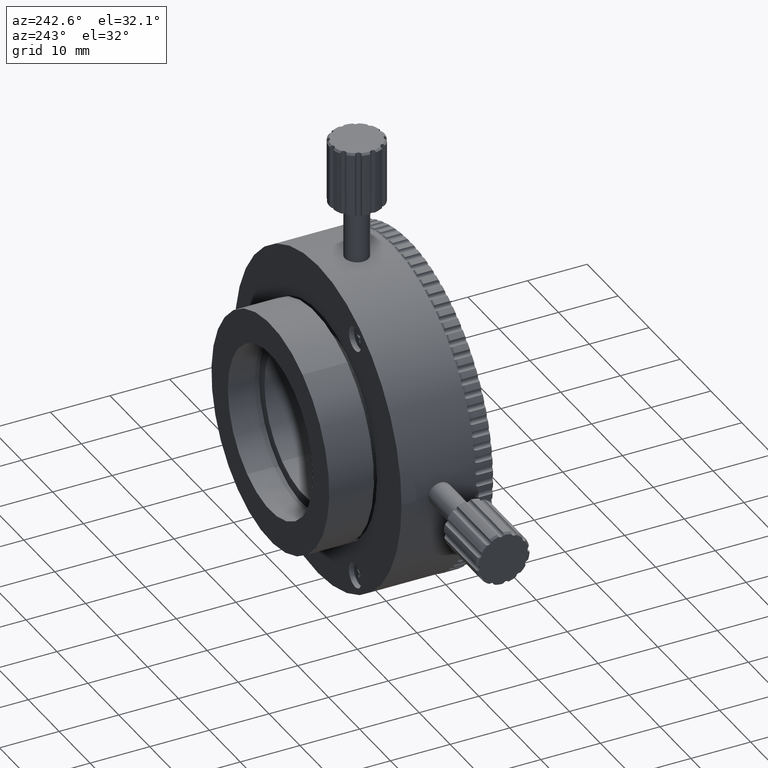
[diagram: clean part render]
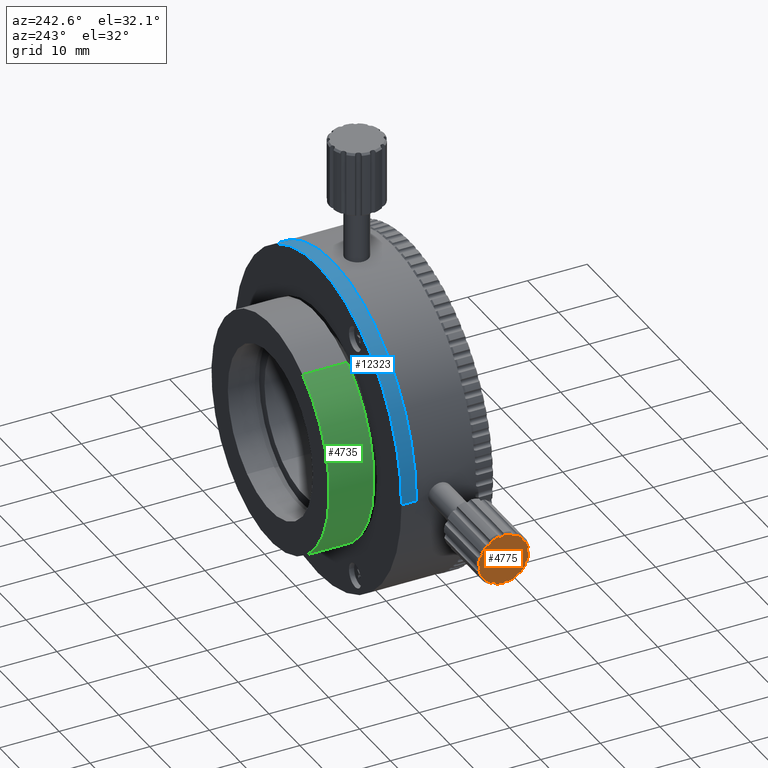
[diagram: same view with three faces highlighted in distinct colors, each labeled with its STEP entity id]
A machine part, auxiliary view with three faces highlighted in distinct colors.
Their STEP definitions:

[orange] entity #4775 — the highlighted planar face has unit normal (-1, -0, -0).
#486 = DIRECTION ( 'NONE',  ( -3.304235192336774723E-15, -0.4128744934196616478, 0.9107879295881439186 ) ) ;
#557 = CARTESIAN_POINT ( 'NONE',  ( -38.13430434938820213, 6.411850727061509936, 79.07421283088778807 ) ) ;
#577 = AXIS2_PLACEMENT_3D ( 'NONE', #10037, #3038, #20667 ) ;
#829 = DIRECTION ( 'NONE',  ( -1.000000000000000000, -1.017949417668873240E-16, -3.423397657558312205E-15 ) ) ;
#857 = ORIENTED_EDGE ( 'NONE', *, *, #12284, .F. ) ;
#930 = AXIS2_PLACEMENT_3D ( 'NONE', #3176, #17886, #8651 ) ;
#942 = DIRECTION ( 'NONE',  ( 0.000000000000000000, -0.09783416491800217551, -0.9952027311933971943 ) ) ;
#975 = ORIENTED_EDGE ( 'NONE', *, *, #17243, .F. ) ;
#1118 = DIRECTION ( 'NONE',  ( 1.000000000000000000, 1.017949417668873240E-16, 3.423397657558312205E-15 ) ) ;
#1193 = CARTESIAN_POINT ( 'NONE',  ( -38.13430434938820213, 6.411850727061509936, 79.07421283088778807 ) ) ;
#1362 = VERTEX_POINT ( 'NONE', #7789 ) ;
#1430 = ORIENTED_EDGE ( 'NONE', *, *, #8767, .F. ) ;
#1522 = AXIS2_PLACEMENT_3D ( 'NONE', #17996, #5603, #1986 ) ;
#1550 = EDGE_CURVE ( 'NONE', #19301, #9987, #8722, .T. ) ;
#1567 = DIRECTION ( 'NONE',  ( -1.000000000000000000, -1.017949417668873240E-16, -3.423397657558312205E-15 ) ) ;
#1601 = CARTESIAN_POINT ( 'NONE',  ( -38.13430434938820213, 14.16868835122377313, 78.31167098129449755 ) ) ;
#1757 = CIRCLE ( 'NONE', #5093, 0.5000000000000001110 ) ;
#1890 = DIRECTION ( 'NONE',  ( 0.000000000000000000, 0.8129537646701284759, -0.5823282377737364346 ) ) ;
#1915 = VERTEX_POINT ( 'NONE', #13587 ) ;
#1986 = DIRECTION ( 'NONE',  ( -3.304235192336774723E-15, -0.4128744934196616478, 0.9107879295881439186 ) ) ;
#2110 = FACE_OUTER_BOUND ( 'NONE', #17040, .T. ) ;
#2251 = DIRECTION ( 'NONE',  ( 1.000000000000000000, 1.017949417668873240E-16, 3.423397657558312205E-15 ) ) ;
#2599 = CIRCLE ( 'NONE', #11930, 4.200000000000001066 ) ;
#2672 = VERTEX_POINT ( 'NONE', #13850 ) ;
#2723 = DIRECTION ( 'NONE',  ( -1.000000000000000000, -1.017949417668873240E-16, -3.423397657558312205E-15 ) ) ;
#2828 = CARTESIAN_POINT ( 'NONE',  ( -38.13430434938818081, 12.14846479968769621, 72.80399917900622597 ) ) ;
#2833 = CIRCLE ( 'NONE', #4310, 4.200000000000001066 ) ;
#3007 = CARTESIAN_POINT ( 'NONE',  ( -38.13430434938820213, 6.894984121763905627, 79.20298442295428742 ) ) ;
#3031 = CARTESIAN_POINT ( 'NONE',  ( -38.13430434938818081, 9.276802758579529851, 72.32934346773139112 ) ) ;
#3038 = DIRECTION ( 'NONE',  ( 1.000000000000000000, 1.017949417668873240E-16, 3.423397657558312205E-15 ) ) ;
#3112 = ORIENTED_EDGE ( 'NONE', *, *, #9461, .F. ) ;
#3148 = CARTESIAN_POINT ( 'NONE',  ( -38.13430434938820923, 12.81939133012538967, 79.62889430721924100 ) ) ;
#3176 = CARTESIAN_POINT ( 'NONE',  ( -38.13430434938818081, 9.629888925946074707, 71.97532347053574142 ) ) ;
#3282 = CIRCLE ( 'NONE', #21931, 0.4999999999999934497 ) ;
#3357 = CARTESIAN_POINT ( 'NONE',  ( -38.13430434938820923, 10.09513119580482154, 80.65366142375793856 ) ) ;
#3739 = DIRECTION ( 'NONE',  ( 3.075960729669748765E-15, 0.4128744934196618144, -0.9107879295881438075 ) ) ;
#3866 = CARTESIAN_POINT ( 'NONE',  ( -38.13430434938819502, 10.07014266807712488, 76.45373576090602796 ) ) ;
#3897 = ORIENTED_EDGE ( 'NONE', *, *, #20724, .F. ) ;
#4007 = DIRECTION ( 'NONE',  ( -3.304235192336774723E-15, -0.4128744934196616478, 0.9107879295881439186 ) ) ;
#4310 = AXIS2_PLACEMENT_3D ( 'NONE', #22582, #1118, #6146 ) ;
#4329 = AXIS2_PLACEMENT_3D ( 'NONE', #22828, #8484, #6846 ) ;
#4350 = VERTEX_POINT ( 'NONE', #14055 ) ;
#4396 = ORIENTED_EDGE ( 'NONE', *, *, #11328, .F. ) ;
#4408 = CARTESIAN_POINT ( 'NONE',  ( -38.13430434938819502, 10.07014266807712488, 76.45373576090602796 ) ) ;
#4521 = DIRECTION ( 'NONE',  ( 0.000000000000000000, -0.9107879295881385895, -0.4128744934196736383 ) ) ;
#4571 = DIRECTION ( 'NONE',  ( 0.000000000000000000, -0.5823282377737241111, -0.8129537646701375797 ) ) ;
#4723 = CIRCLE ( 'NONE', #9951, 4.200000000000001066 ) ;
#4775 = ADVANCED_FACE ( 'NONE', ( #2110 ), #14606, .T. ) ;
#4776 = EDGE_CURVE ( 'NONE', #16251, #2672, #17553, .T. ) ;
#4825 = AXIS2_PLACEMENT_3D ( 'NONE', #557, #14815, #11196 ) ;
#4916 = DIRECTION ( 'NONE',  ( 0.000000000000000000, 0.9107879295881392556, 0.4128744934196723615 ) ) ;
#5093 = AXIS2_PLACEMENT_3D ( 'NONE', #14041, #21280, #15920 ) ;
#5121 = ORIENTED_EDGE ( 'NONE', *, *, #20593, .F. ) ;
#5147 = CARTESIAN_POINT ( 'NONE',  ( -38.13430434938819502, 10.07014266807712488, 76.45373576090602796 ) ) ;
#5315 = CIRCLE ( 'NONE', #6449, 0.5000000000000023315 ) ;
#5558 = DIRECTION ( 'NONE',  ( -3.304235192336774723E-15, -0.4128744934196616478, 0.9107879295881439186 ) ) ;
#5603 = DIRECTION ( 'NONE',  ( 1.000000000000000000, 1.017949417668873240E-16, 3.423397657558312205E-15 ) ) ;
#5657 = EDGE_CURVE ( 'NONE', #11547, #18411, #9246, .T. ) ;
#5858 = DIRECTION ( 'NONE',  ( 0.000000000000000000, -0.8129537646701298081, 0.5823282377737348803 ) ) ;
#5971 = CARTESIAN_POINT ( 'NONE',  ( -38.13430434938818081, 7.948539136835786501, 72.82898770673394040 ) ) ;
#6146 = DIRECTION ( 'NONE',  ( -3.304235192336774723E-15, -0.4128744934196616478, 0.9107879295881439186 ) ) ;
#6393 = ORIENTED_EDGE ( 'NONE', *, *, #14439, .F. ) ;
#6446 = ORIENTED_EDGE ( 'NONE', *, *, #11883, .F. ) ;
#6449 = AXIS2_PLACEMENT_3D ( 'NONE', #9034, #17944, #21319 ) ;
#6846 = DIRECTION ( 'NONE',  ( 0.000000000000000000, 0.09783416491800904502, 0.9952027311933964171 ) ) ;
#6919 = VERTEX_POINT ( 'NONE', #20573 ) ;
#7024 = CARTESIAN_POINT ( 'NONE',  ( -38.13430434938818081, 7.449665598095326580, 72.79544381989043700 ) ) ;
#7210 = VERTEX_POINT ( 'NONE', #9444 ) ;
#7301 = CARTESIAN_POINT ( 'NONE',  ( -38.13430434938819502, 10.07014266807712488, 76.45373576090602796 ) ) ;
#7316 = CIRCLE ( 'NONE', #22955, 4.200000000000001066 ) ;
#7350 = CARTESIAN_POINT ( 'NONE',  ( -38.13430434938819502, 10.07014266807712488, 76.45373576090602796 ) ) ;
#7456 = ORIENTED_EDGE ( 'NONE', *, *, #12068, .F. ) ;
#7627 = CIRCLE ( 'NONE', #10609, 0.5000000000000002220 ) ;
#7641 = ORIENTED_EDGE ( 'NONE', *, *, #19360, .F. ) ;
#7714 = AXIS2_PLACEMENT_3D ( 'NONE', #9809, #15201, #13446 ) ;
#7789 = CARTESIAN_POINT ( 'NONE',  ( -38.13430434938819502, 14.19453496125176528, 75.66039585140845247 ) ) ;
#7954 = CIRCLE ( 'NONE', #12816, 0.5000000000000039968 ) ;
#8024 = DIRECTION ( 'NONE',  ( -3.304235192336774723E-15, -0.4128744934196616478, 0.9107879295881439186 ) ) ;
#8134 = DIRECTION ( 'NONE',  ( 1.000000000000000000, 1.017949417668873240E-16, 3.423397657558312205E-15 ) ) ;
#8335 = DIRECTION ( 'NONE',  ( 0.000000000000000000, -0.9952027311933960840, 0.09783416491801458226 ) ) ;
#8484 = DIRECTION ( 'NONE',  ( -1.000000000000000000, -1.017949417668873240E-16, -3.423397657558312205E-15 ) ) ;
#8532 = VERTEX_POINT ( 'NONE', #3031 ) ;
#8560 = VERTEX_POINT ( 'NONE', #20552 ) ;
#8651 = DIRECTION ( 'NONE',  ( 0.000000000000000000, 0.9952027311933960840, -0.09783416491801458226 ) ) ;
#8653 = DIRECTION ( 'NONE',  ( 1.000000000000000000, 1.017949417668873240E-16, 3.423397657558312205E-15 ) ) ;
#8722 = CIRCLE ( 'NONE', #14320, 4.200000000000001066 ) ;
#8767 = EDGE_CURVE ( 'NONE', #14289, #10617, #18654, .T. ) ;
#8786 = CARTESIAN_POINT ( 'NONE',  ( -38.13430434938819502, 10.07014266807712488, 76.45373576090602796 ) ) ;
#8901 = CARTESIAN_POINT ( 'NONE',  ( -38.13430434938820213, 6.618287973771344923, 78.61881886609371861 ) ) ;
#8968 = ORIENTED_EDGE ( 'NONE', *, *, #14147, .F. ) ;
#9017 = EDGE_CURVE ( 'NONE', #12064, #4350, #5315, .T. ) ;
#9034 = CARTESIAN_POINT ( 'NONE',  ( -38.13430434938818792, 13.72843460909272295, 73.83325869092425364 ) ) ;
#9246 = CIRCLE ( 'NONE', #20839, 0.5000000000000028866 ) ;
#9436 = VERTEX_POINT ( 'NONE', #10784 ) ;
#9444 = CARTESIAN_POINT ( 'NONE',  ( -38.13430434938820213, 13.71987924997693753, 78.53205789251659041 ) ) ;
#9461 = EDGE_CURVE ( 'NONE', #9987, #16251, #7954, .T. ) ;
#9518 = VERTEX_POINT ( 'NONE', #12542 ) ;
#9524 = CIRCLE ( 'NONE', #577, 4.200000000000001066 ) ;
#9809 = CARTESIAN_POINT ( 'NONE',  ( -38.13430434938819502, 10.07014266807712488, 76.45373576090602796 ) ) ;
#9877 = VERTEX_POINT ( 'NONE', #19183 ) ;
#9886 = DIRECTION ( 'NONE',  ( -1.000000000000000000, -1.017949417668873240E-16, -3.423397657558312205E-15 ) ) ;
#9901 = DIRECTION ( 'NONE',  ( -1.000000000000000000, -1.017949417668873240E-16, -3.423397657558312205E-15 ) ) ;
#9951 = AXIS2_PLACEMENT_3D ( 'NONE', #8786, #17461, #4007 ) ;
#9987 = VERTEX_POINT ( 'NONE', #18350 ) ;
#10037 = CARTESIAN_POINT ( 'NONE',  ( -38.13430434938819502, 10.07014266807712488, 76.45373576090602796 ) ) ;
#10123 = VERTEX_POINT ( 'NONE', #22068 ) ;
#10319 = DIRECTION ( 'NONE',  ( 0.000000000000000000, 0.4128744934196583172, -0.9107879295881453618 ) ) ;
#10609 = AXIS2_PLACEMENT_3D ( 'NONE', #1193, #2723, #4571 ) ;
#10616 = CARTESIAN_POINT ( 'NONE',  ( -38.13430434938820923, 7.991820536466527791, 80.10347234280581574 ) ) ;
#10617 = VERTEX_POINT ( 'NONE', #8901 ) ;
#10784 = CARTESIAN_POINT ( 'NONE',  ( -38.13430434938820923, 10.71683365691798073, 80.47675408648223083 ) ) ;
#10803 = DIRECTION ( 'NONE',  ( -3.304235192336774723E-15, -0.4128744934196616478, 0.9107879295881439186 ) ) ;
#10831 = DIRECTION ( 'NONE',  ( 0.000000000000000000, -0.4128744934196597605, 0.9107879295881448067 ) ) ;
#10869 = DIRECTION ( 'NONE',  ( -1.000000000000000000, -1.017949417668876198E-16, -3.423397657558311810E-15 ) ) ;
#10910 = CARTESIAN_POINT ( 'NONE',  ( -38.13430434938819502, 10.07014266807712488, 76.45373576090602796 ) ) ;
#10998 = CIRCLE ( 'NONE', #930, 0.5000000000000009992 ) ;
#11031 = CIRCLE ( 'NONE', #4329, 0.4999999999999938383 ) ;
#11057 = EDGE_CURVE ( 'NONE', #8532, #18485, #10998, .T. ) ;
#11174 = VERTEX_POINT ( 'NONE', #5971 ) ;
#11196 = DIRECTION ( 'NONE',  ( 0.000000000000000000, -0.5823282377737241111, -0.8129537646701375797 ) ) ;
#11274 = VERTEX_POINT ( 'NONE', #16606 ) ;
#11328 = EDGE_CURVE ( 'NONE', #18411, #11274, #9524, .T. ) ;
#11496 = AXIS2_PLACEMENT_3D ( 'NONE', #12965, #9901, #22284 ) ;
#11547 = VERTEX_POINT ( 'NONE', #3148 ) ;
#11550 = DIRECTION ( 'NONE',  ( 1.000000000000000000, 1.017949417668873240E-16, 3.423397657558312205E-15 ) ) ;
#11831 = CARTESIAN_POINT ( 'NONE',  ( -38.13430434938818081, 11.92807788846561756, 72.35519007775938860 ) ) ;
#11883 = EDGE_CURVE ( 'NONE', #1362, #6919, #11031, .T. ) ;
#11930 = AXIS2_PLACEMENT_3D ( 'NONE', #21501, #21626, #17664 ) ;
#12064 = VERTEX_POINT ( 'NONE', #20048 ) ;
#12068 = EDGE_CURVE ( 'NONE', #7210, #11547, #16294, .T. ) ;
#12262 = EDGE_CURVE ( 'NONE', #2672, #11174, #15909, .T. ) ;
#12284 = EDGE_CURVE ( 'NONE', #11174, #8532, #7316, .T. ) ;
#12485 = CARTESIAN_POINT ( 'NONE',  ( -38.13430434938818792, 6.420406086177314009, 74.37541362929546551 ) ) ;
#12525 = CIRCLE ( 'NONE', #13634, 4.200000000000001066 ) ;
#12542 = CARTESIAN_POINT ( 'NONE',  ( -38.13430434938818081, 11.44528629920348450, 72.48523730509523944 ) ) ;
#12547 = CIRCLE ( 'NONE', #22943, 0.5000000000000001110 ) ;
#12615 = EDGE_CURVE ( 'NONE', #18485, #9518, #16317, .T. ) ;
#12816 = AXIS2_PLACEMENT_3D ( 'NONE', #17680, #22906, #10319 ) ;
#12898 = ORIENTED_EDGE ( 'NONE', *, *, #4776, .F. ) ;
#12965 = CARTESIAN_POINT ( 'NONE',  ( -38.13430434938820923, 10.51039641020814486, 80.93214805127631450 ) ) ;
#13400 = VERTEX_POINT ( 'NONE', #2828 ) ;
#13446 = DIRECTION ( 'NONE',  ( -3.304235192336774723E-15, -0.4128744934196616478, 0.9107879295881439186 ) ) ;
#13520 = DIRECTION ( 'NONE',  ( -3.304235192336774723E-15, -0.4128744934196616478, 0.9107879295881439186 ) ) ;
#13587 = CARTESIAN_POINT ( 'NONE',  ( -38.13430434938820923, 8.694999036950738613, 80.42223421671680228 ) ) ;
#13634 = AXIS2_PLACEMENT_3D ( 'NONE', #4408, #11550, #8024 ) ;
#13850 = CARTESIAN_POINT ( 'NONE',  ( -38.13430434938818081, 7.320894006028838774, 73.27857721459284335 ) ) ;
#13979 = CIRCLE ( 'NONE', #18522, 0.5000000000000016653 ) ;
#14041 = CARTESIAN_POINT ( 'NONE',  ( -38.13430434938820923, 8.212207447688603779, 80.55228144405265311 ) ) ;
#14055 = CARTESIAN_POINT ( 'NONE',  ( -38.13430434938818792, 13.69489072224920889, 74.33213222966469402 ) ) ;
#14074 = DIRECTION ( 'NONE',  ( 1.000000000000000000, 1.017949417668873240E-16, 3.423397657558312205E-15 ) ) ;
#14147 = EDGE_CURVE ( 'NONE', #8560, #21093, #12547, .T. ) ;
#14208 = EDGE_CURVE ( 'NONE', #9877, #21031, #22216, .T. ) ;
#14239 = CARTESIAN_POINT ( 'NONE',  ( -38.13430434938819502, 5.945750374902480928, 77.24707567040357503 ) ) ;
#14240 = ORIENTED_EDGE ( 'NONE', *, *, #11057, .F. ) ;
#14289 = VERTEX_POINT ( 'NONE', #3007 ) ;
#14320 = AXIS2_PLACEMENT_3D ( 'NONE', #10910, #14074, #10803 ) ;
#14439 = EDGE_CURVE ( 'NONE', #9518, #13400, #13979, .T. ) ;
#14508 = EDGE_CURVE ( 'NONE', #10617, #9877, #7627, .T. ) ;
#14606 = PLANE ( 'NONE',  #20916 ) ;
#14626 = CARTESIAN_POINT ( 'NONE',  ( -38.13430434938820923, 12.69061973805889920, 80.11202770192163314 ) ) ;
#14815 = DIRECTION ( 'NONE',  ( -1.000000000000000000, -1.017949417668873240E-16, -3.423397657558312205E-15 ) ) ;
#15182 = CIRCLE ( 'NONE', #16673, 0.5000000000000009992 ) ;
#15201 = DIRECTION ( 'NONE',  ( 1.000000000000000000, 1.017949417668873240E-16, 3.423397657558312205E-15 ) ) ;
#15241 = ORIENTED_EDGE ( 'NONE', *, *, #21466, .F. ) ;
#15361 = EDGE_CURVE ( 'NONE', #13400, #12064, #12525, .T. ) ;
#15891 = AXIS2_PLACEMENT_3D ( 'NONE', #16917, #8134, #13520 ) ;
#15909 = CIRCLE ( 'NONE', #17410, 0.5000000000000015543 ) ;
#15920 = DIRECTION ( 'NONE',  ( 0.000000000000000000, -0.9107879295881385895, -0.4128744934196736383 ) ) ;
#15970 = EDGE_CURVE ( 'NONE', #9436, #20287, #15182, .T. ) ;
#15976 = EDGE_CURVE ( 'NONE', #20287, #1915, #4723, .T. ) ;
#15992 = AXIS2_PLACEMENT_3D ( 'NONE', #1601, #22948, #10831 ) ;
#16251 = VERTEX_POINT ( 'NONE', #12485 ) ;
#16294 = CIRCLE ( 'NONE', #21494, 4.200000000000001066 ) ;
#16317 = CIRCLE ( 'NONE', #7714, 4.200000000000001066 ) ;
#16386 = CARTESIAN_POINT ( 'NONE',  ( -38.13430434938820923, 12.19174619931843750, 80.07848381507811553 ) ) ;
#16479 = ORIENTED_EDGE ( 'NONE', *, *, #12262, .F. ) ;
#16499 = ORIENTED_EDGE ( 'NONE', *, *, #5657, .F. ) ;
#16606 = CARTESIAN_POINT ( 'NONE',  ( -38.13430434938820923, 10.86348257757469149, 80.57812805408066481 ) ) ;
#16673 = AXIS2_PLACEMENT_3D ( 'NONE', #17575, #1567, #8335 ) ;
#16693 = CARTESIAN_POINT ( 'NONE',  ( -38.13430434938820923, 8.212207447688603779, 80.55228144405265311 ) ) ;
#16871 = ORIENTED_EDGE ( 'NONE', *, *, #15361, .F. ) ;
#16917 = CARTESIAN_POINT ( 'NONE',  ( -38.13430434938819502, 10.07014266807712488, 76.45373576090602796 ) ) ;
#17040 = EDGE_LOOP ( 'NONE', ( #14240, #857, #16479, #12898, #3112, #17347, #975, #22971, #21416, #1430, #22814, #8968, #5121, #19988, #19233, #17545, #4396, #16499, #7456, #15241, #7641, #6446, #3897, #21091, #16871, #6393, #21464 ) ) ;
#17083 = AXIS2_PLACEMENT_3D ( 'NONE', #3866, #2251, #486 ) ;
#17188 = CARTESIAN_POINT ( 'NONE',  ( -38.13430434938819502, 5.591730377706838340, 76.89398950303703373 ) ) ;
#17243 = EDGE_CURVE ( 'NONE', #21031, #19301, #3282, .T. ) ;
#17347 = ORIENTED_EDGE ( 'NONE', *, *, #1550, .F. ) ;
#17410 = AXIS2_PLACEMENT_3D ( 'NONE', #7024, #19302, #1890 ) ;
#17461 = DIRECTION ( 'NONE',  ( 1.000000000000000000, 1.017949417668873240E-16, 3.423397657558312205E-15 ) ) ;
#17545 = ORIENTED_EDGE ( 'NONE', *, *, #21216, .F. ) ;
#17553 = CIRCLE ( 'NONE', #1522, 4.200000000000001066 ) ;
#17575 = CARTESIAN_POINT ( 'NONE',  ( -38.13430434938820923, 10.51039641020814486, 80.93214805127631450 ) ) ;
#17664 = DIRECTION ( 'NONE',  ( -3.304235192336774723E-15, -0.4128744934196616478, 0.9107879295881439186 ) ) ;
#17680 = CARTESIAN_POINT ( 'NONE',  ( -38.13430434938818792, 5.971596984930478413, 74.59580054051754416 ) ) ;
#17886 = DIRECTION ( 'NONE',  ( -1.000000000000000000, -1.017949417668873240E-16, -3.423397657558312205E-15 ) ) ;
#17944 = DIRECTION ( 'NONE',  ( -1.000000000000000000, -1.017949417668873240E-16, -3.423397657558312205E-15 ) ) ;
#17996 = CARTESIAN_POINT ( 'NONE',  ( -38.13430434938819502, 10.07014266807712488, 76.45373576090602796 ) ) ;
#18339 = EDGE_CURVE ( 'NONE', #21093, #14289, #2599, .T. ) ;
#18350 = CARTESIAN_POINT ( 'NONE',  ( -38.13430434938818792, 6.101644212266333689, 75.07859212977969321 ) ) ;
#18411 = VERTEX_POINT ( 'NONE', #16386 ) ;
#18485 = VERTEX_POINT ( 'NONE', #21846 ) ;
#18522 = AXIS2_PLACEMENT_3D ( 'NONE', #11831, #20695, #4916 ) ;
#18654 = CIRCLE ( 'NONE', #4825, 0.5000000000000002220 ) ;
#18984 = CIRCLE ( 'NONE', #15992, 0.5000000000000043299 ) ;
#18996 = CARTESIAN_POINT ( 'NONE',  ( -38.13430434938819502, 5.870217005225224050, 76.47872428863371397 ) ) ;
#19183 = CARTESIAN_POINT ( 'NONE',  ( -38.13430434938820213, 6.445394613905024883, 78.57533929214733348 ) ) ;
#19233 = ORIENTED_EDGE ( 'NONE', *, *, #15970, .F. ) ;
#19301 = VERTEX_POINT ( 'NONE', #18996 ) ;
#19302 = DIRECTION ( 'NONE',  ( -1.000000000000000000, -1.017949417668873240E-16, -3.423397657558312205E-15 ) ) ;
#19360 = EDGE_CURVE ( 'NONE', #6919, #10123, #2833, .T. ) ;
#19988 = ORIENTED_EDGE ( 'NONE', *, *, #15976, .F. ) ;
#20048 = CARTESIAN_POINT ( 'NONE',  ( -38.13430434938818792, 13.24530121439032548, 73.70448709885775429 ) ) ;
#20287 = VERTEX_POINT ( 'NONE', #3357 ) ;
#20552 = CARTESIAN_POINT ( 'NONE',  ( -38.13430434938820923, 8.418644694398446759, 80.09688747925859786 ) ) ;
#20573 = CARTESIAN_POINT ( 'NONE',  ( -38.13430434938819502, 14.27006833092902838, 76.42874723317831354 ) ) ;
#20593 = EDGE_CURVE ( 'NONE', #1915, #8560, #1757, .T. ) ;
#20667 = DIRECTION ( 'NONE',  ( -3.304235192336774723E-15, -0.4128744934196616478, 0.9107879295881439186 ) ) ;
#20695 = DIRECTION ( 'NONE',  ( -1.000000000000000000, -1.017949417668873240E-16, -3.423397657558312205E-15 ) ) ;
#20724 = EDGE_CURVE ( 'NONE', #4350, #1362, #21165, .T. ) ;
#20829 = CIRCLE ( 'NONE', #11496, 0.5000000000000009992 ) ;
#20839 = AXIS2_PLACEMENT_3D ( 'NONE', #14626, #22503, #5858 ) ;
#20916 = AXIS2_PLACEMENT_3D ( 'NONE', #7350, #10869, #3739 ) ;
#21031 = VERTEX_POINT ( 'NONE', #14239 ) ;
#21091 = ORIENTED_EDGE ( 'NONE', *, *, #9017, .F. ) ;
#21093 = VERTEX_POINT ( 'NONE', #10616 ) ;
#21165 = CIRCLE ( 'NONE', #17083, 4.200000000000001066 ) ;
#21216 = EDGE_CURVE ( 'NONE', #11274, #9436, #20829, .T. ) ;
#21280 = DIRECTION ( 'NONE',  ( -1.000000000000000000, -1.017949417668873240E-16, -3.423397657558312205E-15 ) ) ;
#21319 = DIRECTION ( 'NONE',  ( 0.000000000000000000, 0.5823282377737286630, 0.8129537646701341380 ) ) ;
#21416 = ORIENTED_EDGE ( 'NONE', *, *, #14508, .F. ) ;
#21464 = ORIENTED_EDGE ( 'NONE', *, *, #12615, .F. ) ;
#21466 = EDGE_CURVE ( 'NONE', #10123, #7210, #18984, .T. ) ;
#21494 = AXIS2_PLACEMENT_3D ( 'NONE', #7301, #21560, #5558 ) ;
#21497 = DIRECTION ( 'NONE',  ( -3.304235192336774723E-15, -0.4128744934196616478, 0.9107879295881439186 ) ) ;
#21501 = CARTESIAN_POINT ( 'NONE',  ( -38.13430434938819502, 10.07014266807712488, 76.45373576090602796 ) ) ;
#21560 = DIRECTION ( 'NONE',  ( 1.000000000000000000, 1.017949417668873240E-16, 3.423397657558312205E-15 ) ) ;
#21626 = DIRECTION ( 'NONE',  ( 1.000000000000000000, 1.017949417668873240E-16, 3.423397657558312205E-15 ) ) ;
#21846 = CARTESIAN_POINT ( 'NONE',  ( -38.13430434938818081, 10.04515414034939980, 72.25381009805411736 ) ) ;
#21931 = AXIS2_PLACEMENT_3D ( 'NONE', #17188, #829, #942 ) ;
#22068 = CARTESIAN_POINT ( 'NONE',  ( -38.13430434938820213, 14.03864112388791874, 77.82887939203236272 ) ) ;
#22216 = CIRCLE ( 'NONE', #15891, 4.200000000000001066 ) ;
#22284 = DIRECTION ( 'NONE',  ( 0.000000000000000000, -0.9952027311933960840, 0.09783416491801458226 ) ) ;
#22503 = DIRECTION ( 'NONE',  ( -1.000000000000000000, -1.017949417668873240E-16, -3.423397657558312205E-15 ) ) ;
#22582 = CARTESIAN_POINT ( 'NONE',  ( -38.13430434938819502, 10.07014266807712488, 76.45373576090602796 ) ) ;
#22814 = ORIENTED_EDGE ( 'NONE', *, *, #18339, .F. ) ;
#22828 = CARTESIAN_POINT ( 'NONE',  ( -38.13430434938819502, 14.54855495844740965, 76.01348201877499378 ) ) ;
#22906 = DIRECTION ( 'NONE',  ( -1.000000000000000000, -1.017949417668873240E-16, -3.423397657558312205E-15 ) ) ;
#22943 = AXIS2_PLACEMENT_3D ( 'NONE', #16693, #9886, #4521 ) ;
#22948 = DIRECTION ( 'NONE',  ( -1.000000000000000000, -1.017949417668873240E-16, -3.423397657558312205E-15 ) ) ;
#22955 = AXIS2_PLACEMENT_3D ( 'NONE', #5147, #8653, #21497 ) ;
#22971 = ORIENTED_EDGE ( 'NONE', *, *, #14208, .F. ) ;

[blue] entity #12323 — the highlighted cylindrical surface (partial cylindrical patch) has radius 27 mm, axis along (-0, -1, 0).
#655 = CARTESIAN_POINT ( 'NONE',  ( 36.35296324910479626, 14.07014266807712843, 76.45373576090617007 ) ) ;
#779 = VECTOR ( 'NONE', #21655, 1000.000000000000000 ) ;
#907 = DIRECTION ( 'NONE',  ( 0.000000000000000000, 1.000000000000000000, 0.000000000000000000 ) ) ;
#967 = DIRECTION ( 'NONE',  ( 1.000000000000000000, 0.000000000000000000, 0.000000000000000000 ) ) ;
#970 = ORIENTED_EDGE ( 'NONE', *, *, #11059, .T. ) ;
#1432 = CARTESIAN_POINT ( 'NONE',  ( -17.64703675089520729, 16.57014266807712843, 76.45373576090617007 ) ) ;
#1436 = DIRECTION ( 'NONE',  ( 0.000000000000000000, 1.000000000000000000, 0.000000000000000000 ) ) ;
#2162 = CARTESIAN_POINT ( 'NONE',  ( 36.35296324910479626, 16.57014266807712843, 76.45373576090617007 ) ) ;
#2360 = ORIENTED_EDGE ( 'NONE', *, *, #5116, .F. ) ;
#4863 = VERTEX_POINT ( 'NONE', #19511 ) ;
#5116 = EDGE_CURVE ( 'NONE', #21597, #10360, #8795, .T. ) ;
#5473 = ORIENTED_EDGE ( 'NONE', *, *, #16941, .T. ) ;
#5565 = CARTESIAN_POINT ( 'NONE',  ( 36.35296324910479626, 16.57014266807712843, 76.45373576090617007 ) ) ;
#6181 = AXIS2_PLACEMENT_3D ( 'NONE', #19017, #907, #13523 ) ;
#6902 = FACE_OUTER_BOUND ( 'NONE', #10499, .T. ) ;
#8795 = LINE ( 'NONE', #2162, #779 ) ;
#10360 = VERTEX_POINT ( 'NONE', #655 ) ;
#10499 = EDGE_LOOP ( 'NONE', ( #2360, #15045, #970, #5473 ) ) ;
#11059 = EDGE_CURVE ( 'NONE', #4863, #19619, #15908, .T. ) ;
#11807 = AXIS2_PLACEMENT_3D ( 'NONE', #21160, #17551, #22885 ) ;
#12323 = ADVANCED_FACE ( 'NONE', ( #6902 ), #21042, .T. ) ;
#13523 = DIRECTION ( 'NONE',  ( 1.000000000000000000, 0.000000000000000000, 0.000000000000000000 ) ) ;
#15045 = ORIENTED_EDGE ( 'NONE', *, *, #15300, .F. ) ;
#15300 = EDGE_CURVE ( 'NONE', #4863, #21597, #20359, .T. ) ;
#15853 = VECTOR ( 'NONE', #22998, 1000.000000000000000 ) ;
#15908 = LINE ( 'NONE', #1432, #15853 ) ;
#16941 = EDGE_CURVE ( 'NONE', #19619, #10360, #23010, .T. ) ;
#17437 = CARTESIAN_POINT ( 'NONE',  ( 9.352963249104790933, 14.07014266807712843, 76.45373576090617007 ) ) ;
#17551 = DIRECTION ( 'NONE',  ( -0.000000000000000000, -1.000000000000000000, 0.000000000000000000 ) ) ;
#18158 = CARTESIAN_POINT ( 'NONE',  ( -17.64703675089520729, 14.07014266807712843, 76.45373576090617007 ) ) ;
#19017 = CARTESIAN_POINT ( 'NONE',  ( 9.352963249104790933, 16.57014266807712843, 76.45373576090617007 ) ) ;
#19511 = CARTESIAN_POINT ( 'NONE',  ( -17.64703675089520729, 16.57014266807712843, 76.45373576090617007 ) ) ;
#19619 = VERTEX_POINT ( 'NONE', #18158 ) ;
#20359 = CIRCLE ( 'NONE', #6181, 27.00000000000000355 ) ;
#20421 = AXIS2_PLACEMENT_3D ( 'NONE', #17437, #1436, #967 ) ;
#21042 = CYLINDRICAL_SURFACE ( 'NONE', #11807, 27.00000000000000000 ) ;
#21160 = CARTESIAN_POINT ( 'NONE',  ( 9.352963249104790933, 16.57014266807712843, 76.45373576090617007 ) ) ;
#21597 = VERTEX_POINT ( 'NONE', #5565 ) ;
#21655 = DIRECTION ( 'NONE',  ( -0.000000000000000000, -1.000000000000000000, 0.000000000000000000 ) ) ;
#22885 = DIRECTION ( 'NONE',  ( -1.000000000000000000, 0.000000000000000000, 0.000000000000000000 ) ) ;
#22998 = DIRECTION ( 'NONE',  ( -0.000000000000000000, -1.000000000000000000, 0.000000000000000000 ) ) ;
#23010 = CIRCLE ( 'NONE', #20421, 27.00000000000000355 ) ;

[green] entity #4735 — the highlighted cylindrical surface (partial cylindrical patch) has radius 19.05 mm, axis along (0, 1, 0).
#215 = CARTESIAN_POINT ( 'NONE',  ( -1.066322591301195333, 17.07014266807714264, 92.40180719841595192 ) ) ;
#1120 = EDGE_CURVE ( 'NONE', #3153, #16707, #21007, .T. ) ;
#1466 = CARTESIAN_POINT ( 'NONE',  ( -1.066322591301196887, 24.57014266807713909, 92.40180719841595192 ) ) ;
#1596 = CARTESIAN_POINT ( 'NONE',  ( 9.352963249104790933, 24.57014266807714264, 76.45373576090617007 ) ) ;
#2009 = VECTOR ( 'NONE', #17733, 1000.000000000000000 ) ;
#3153 = VERTEX_POINT ( 'NONE', #15473 ) ;
#3212 = LINE ( 'NONE', #1466, #5050 ) ;
#3663 = ORIENTED_EDGE ( 'NONE', *, *, #1120, .F. ) ;
#4735 = ADVANCED_FACE ( 'NONE', ( #10285 ), #6442, .T. ) ;
#4745 = ORIENTED_EDGE ( 'NONE', *, *, #19528, .T. ) ;
#5050 = VECTOR ( 'NONE', #8575, 1000.000000000000000 ) ;
#5872 = EDGE_LOOP ( 'NONE', ( #15551, #4745, #11319, #3663 ) ) ;
#6442 = CYLINDRICAL_SURFACE ( 'NONE', #9330, 19.05000000000000426 ) ;
#7970 = DIRECTION ( 'NONE',  ( 0.5469441386039886055, 0.000000000000000000, -0.8371691043312222691 ) ) ;
#8575 = DIRECTION ( 'NONE',  ( 0.000000000000000000, 1.000000000000000000, 0.000000000000000000 ) ) ;
#9056 = AXIS2_PLACEMENT_3D ( 'NONE', #10171, #9727, #7970 ) ;
#9330 = AXIS2_PLACEMENT_3D ( 'NONE', #13568, #17312, #10404 ) ;
#9706 = EDGE_CURVE ( 'NONE', #3153, #16429, #11344, .T. ) ;
#9727 = DIRECTION ( 'NONE',  ( 0.000000000000000000, 1.000000000000000000, 0.000000000000000000 ) ) ;
#10171 = CARTESIAN_POINT ( 'NONE',  ( 9.352963249104790933, 17.07014266807714264, 76.45373576090617007 ) ) ;
#10285 = FACE_OUTER_BOUND ( 'NONE', #5872, .T. ) ;
#10404 = DIRECTION ( 'NONE',  ( 0.5469441386039886055, 0.000000000000000000, -0.8371691043312222691 ) ) ;
#10704 = DIRECTION ( 'NONE',  ( 0.5469441386039886055, 0.000000000000000000, -0.8371691043312222691 ) ) ;
#11023 = VERTEX_POINT ( 'NONE', #21493 ) ;
#11319 = ORIENTED_EDGE ( 'NONE', *, *, #19101, .F. ) ;
#11344 = CIRCLE ( 'NONE', #9056, 19.05000000000000426 ) ;
#13568 = CARTESIAN_POINT ( 'NONE',  ( 9.352963249104790933, 24.57014266807713909, 76.45373576090617007 ) ) ;
#13869 = DIRECTION ( 'NONE',  ( 0.000000000000000000, 1.000000000000000000, 0.000000000000000000 ) ) ;
#14174 = CARTESIAN_POINT ( 'NONE',  ( 19.77224908951077609, 24.57014266807714264, 60.50566432339638112 ) ) ;
#15473 = CARTESIAN_POINT ( 'NONE',  ( 19.77224908951077609, 17.07014266807714264, 60.50566432339638112 ) ) ;
#15551 = ORIENTED_EDGE ( 'NONE', *, *, #9706, .T. ) ;
#16429 = VERTEX_POINT ( 'NONE', #215 ) ;
#16707 = VERTEX_POINT ( 'NONE', #14174 ) ;
#17312 = DIRECTION ( 'NONE',  ( 0.000000000000000000, 1.000000000000000000, 0.000000000000000000 ) ) ;
#17401 = CARTESIAN_POINT ( 'NONE',  ( 19.77224908951077609, 24.57014266807713909, 60.50566432339638112 ) ) ;
#17733 = DIRECTION ( 'NONE',  ( 0.000000000000000000, 1.000000000000000000, 0.000000000000000000 ) ) ;
#18864 = AXIS2_PLACEMENT_3D ( 'NONE', #1596, #13869, #10704 ) ;
#19101 = EDGE_CURVE ( 'NONE', #16707, #11023, #22973, .T. ) ;
#19528 = EDGE_CURVE ( 'NONE', #16429, #11023, #3212, .T. ) ;
#21007 = LINE ( 'NONE', #17401, #2009 ) ;
#21493 = CARTESIAN_POINT ( 'NONE',  ( -1.066322591301195333, 24.57014266807714264, 92.40180719841595192 ) ) ;
#22973 = CIRCLE ( 'NONE', #18864, 19.05000000000000426 ) ;